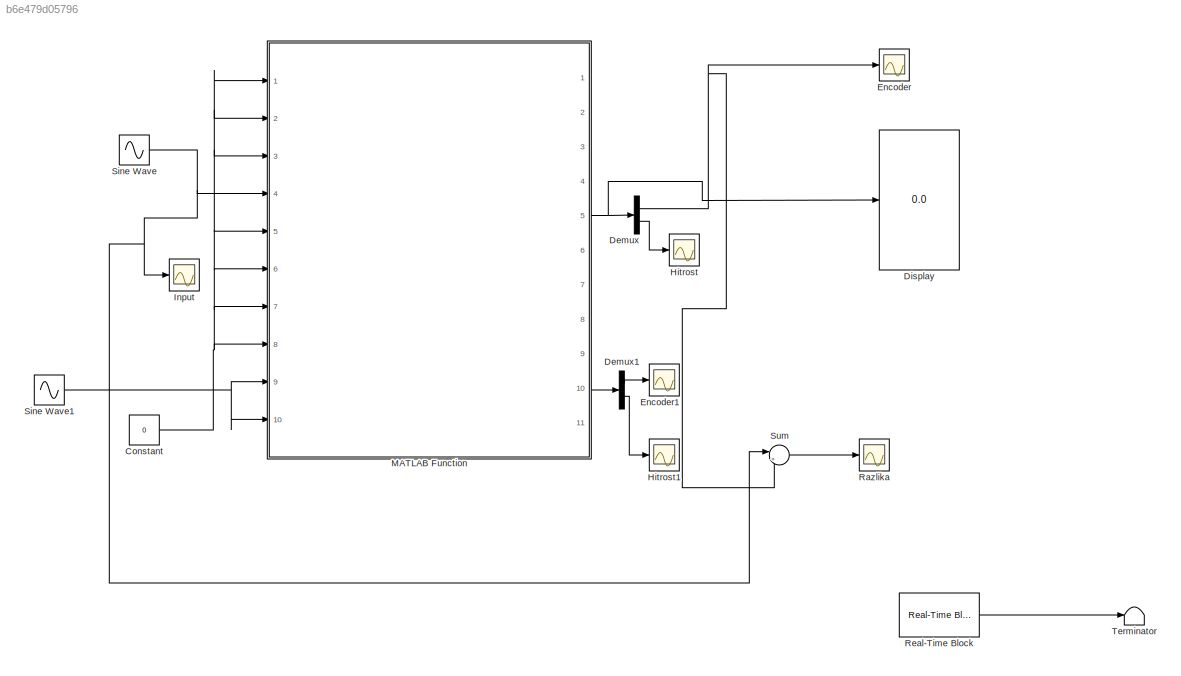
MODEL slx_b6e479d05796
KIND model
CONFIG StartFcn = jankov_var = 10;
BLOCK [Constant] Constant
  Value = 0
BLOCK [Demux] Demux
  DisplayOption = bar
  Outputs = 2
  Ports = [1, 2]
BLOCK [Demux] Demux1
  DisplayOption = bar
  Outputs = 2
  Ports = [1, 2]
BLOCK [Display] Display
  Decimation = 1
  Ports = [1]
BLOCK [Scope] Encoder
  DataFormat = StructureWithTime
  Floating = off
  NumInputPorts = 1
  Ports = [1]
  SampleTime = 0
  SaveName = ScopeData1
  ShowLegends = off
  YMax = 1.05
  YMin = 2.77556e-17
BLOCK [Scope] Encoder1
  DataFormat = StructureWithTime
  Floating = off
  NumInputPorts = 1
  Ports = [1]
  SampleTime = 0
  SaveName = ScopeData4
  ShowLegends = off
  YMax = 6.4034e-06
  YMin = 5.79356e-06
BLOCK [Scope] Hitrost
  DataFormat = StructureWithTime
  Floating = off
  NumInputPorts = 1
  Ports = [1]
  SampleTime = 0
  SaveName = ScopeData3
  ShowLegends = off
  YMax = 0.4
  YMin = -0.25
BLOCK [Scope] Hitrost1
  DataFormat = StructureWithTime
  Floating = off
  NumInputPorts = 1
  Ports = [1]
  SampleTime = 0
  SaveName = ScopeData5
  ShowLegends = off
  YMax = 0.4
  YMin = -0.25
BLOCK [Scope] Input
  DataFormat = StructureWithTime
  Floating = off
  NumInputPorts = 1
  Ports = [1]
  SampleTime = 0
  ShowLegends = off
  YMax = 1.025
  YMin = 0.75
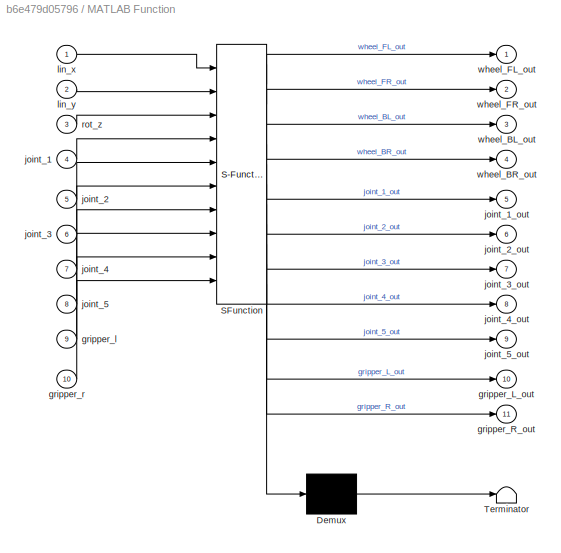
BLOCK [SubSystem] MATLAB Function
  ErrorFcn = Stateflow.Translate.translate
  FunctionWithSeparateData = off
  MaskHideContents = off
  MinAlgLoopOccurrences = off
  Opaque = off
  PermitHierarchicalResolution = ExplicitOnly
  Ports = [10, 11]
  PropExecContextOutsideSubsystem = off
  RTWSystemCode = Auto
  RequestExecContextInheritance = off
  SFBlockType = MATLAB Function
  StartFcn = ros_node = rosmatlab.node('KUKA_SIMULINK_CONTROL','192.168.65.59',11311);          \n\n% Base                                        \n\n    publisher_na_kuko = rosmatlab.publisher('/cmd_vel','geometry_msgs/Twist',ros_node);                                     \n    kuka_message = rosmatlab.message('geometry_msgs/Twist',ros_node);                                                       \n    kuka_message....<+8301ch>
  StopFcn = kuka_message.getLinear.setX(0);         \nkuka_message.getLinear.setY(0);         \nkuka_message.getLinear.setZ(0);         \nkuka_message.getAngular.setX(0);        \nkuka_message.getAngular.setY(0);        \nkuka_message.getAngular.setZ(0);        \npublisher_na_kuko.publish(kuka_message);\nencoder_reader.setOnNewMessageListeners({[]})          \nros_node.delete                         \nclear all
  TreatAsAtomicUnit = on
BLOCK [Demux] MATLAB Function/ Demux 
  Outputs = 1
  Ports = [1, 1]
BLOCK [S-Function] MATLAB Function/ SFunction 
  EnableBusSupport = on
  FunctionName = sf_sfun
  PortCounts = [10 12]
  Ports = [10, 12]
  Tag = Stateflow S-Function kuka_simulink_control 2
BLOCK [Terminator] MATLAB Function/ Terminator 
BLOCK [Outport] MATLAB Function/gripper_L_out
  IconDisplay = Port number
  Port = 10
BLOCK [Outport] MATLAB Function/gripper_R_out
  IconDisplay = Port number
  Port = 11
BLOCK [Inport] MATLAB Function/gripper_l
  IconDisplay = Port number
  Port = 9
BLOCK [Inport] MATLAB Function/gripper_r
  IconDisplay = Port number
  Port = 10
BLOCK [Inport] MATLAB Function/joint_1
  IconDisplay = Port number
  Port = 4
BLOCK [Outport] MATLAB Function/joint_1_out
  IconDisplay = Port number
  Port = 5
BLOCK [Inport] MATLAB Function/joint_2
  IconDisplay = Port number
  Port = 5
BLOCK [Outport] MATLAB Function/joint_2_out
  IconDisplay = Port number
  Port = 6
BLOCK [Inport] MATLAB Function/joint_3
  IconDisplay = Port number
  Port = 6
BLOCK [Outport] MATLAB Function/joint_3_out
  IconDisplay = Port number
  Port = 7
BLOCK [Inport] MATLAB Function/joint_4
  IconDisplay = Port number
  Port = 7
BLOCK [Outport] MATLAB Function/joint_4_out
  IconDisplay = Port number
  Port = 8
BLOCK [Inport] MATLAB Function/joint_5
  IconDisplay = Port number
  Port = 8
BLOCK [Outport] MATLAB Function/joint_5_out
  IconDisplay = Port number
  Port = 9
BLOCK [Inport] MATLAB Function/lin_x
  IconDisplay = Port number
BLOCK [Inport] MATLAB Function/lin_y
  IconDisplay = Port number
  Port = 2
BLOCK [Inport] MATLAB Function/rot_z
  IconDisplay = Port number
  Port = 3
BLOCK [Outport] MATLAB Function/wheel_BL_out
  IconDisplay = Port number
  Port = 3
BLOCK [Outport] MATLAB Function/wheel_BR_out
  IconDisplay = Port number
  Port = 4
BLOCK [Outport] MATLAB Function/wheel_FL_out
  IconDisplay = Port number
BLOCK [Outport] MATLAB Function/wheel_FR_out
  IconDisplay = Port number
  Port = 2
BLOCK [Scope] Razlika
  DataFormat = StructureWithTime
  Floating = off
  NumInputPorts = 1
  Ports = [1]
  SampleTime = 0
  SaveName = ScopeData2
  ShowLegends = off
  YMax = 0.06
  YMin = -0.08
BLOCK [Reference] Real-Time Block  REF=robotica/Utilities blocks/Real-Time Block
  Ports = [0, 1]
  SourceBlock = robotica/Utilities blocks/Real-Time Block
  sync_time = 0.01
  sync_type = Fixed
BLOCK [Sin] Sine Wave
  Amplitude = 0.5
  Bias = 0.52
  Frequency = 0.5
  Phase = -3.1415/2
  Ports = [0, 1]
  SampleTime = 0
BLOCK [Sin] Sine Wave1
  Amplitude = 0.005
  Bias = 0.005
  Frequency = 0.5
  Phase = -3.1415/2
  Ports = [0, 1]
  SampleTime = 0
BLOCK [Sum] Sum
  IconShape = round
  InputSameDT = off
  Inputs = |+-
  OutDataTypeStr = Inherit: Inherit via internal rule
  Ports = [2, 1]
  SaturateOnIntegerOverflow = off
BLOCK [Terminator] Terminator
NET Constant:1 -> MATLAB Function:1, MATLAB Function:2, MATLAB Function:3, MATLAB Function:5, MATLAB Function:6, MATLAB Function:7, MATLAB Function:8
LINE Demux1:1 -> Encoder1:1
LINE Demux1:2 -> Hitrost1:1
NET Demux:1 -> Encoder:1, Sum:2
LINE Demux:2 -> Hitrost:1
LINE MATLAB Function:10 -> Demux1:1
NET MATLAB Function:5 -> Demux:1, Display:1
LINE Real-Time Block:1 -> Terminator:1
NET Sine Wave1:1 -> MATLAB Function:10, MATLAB Function:9
NET Sine Wave:1 -> Input:1, MATLAB Function:4, Sum:1
LINE Sum:1 -> Razlika:1
note: NET lines group one-source signal fan-out (src -> all destinations, sorted); 1:1 wires keep LINE
